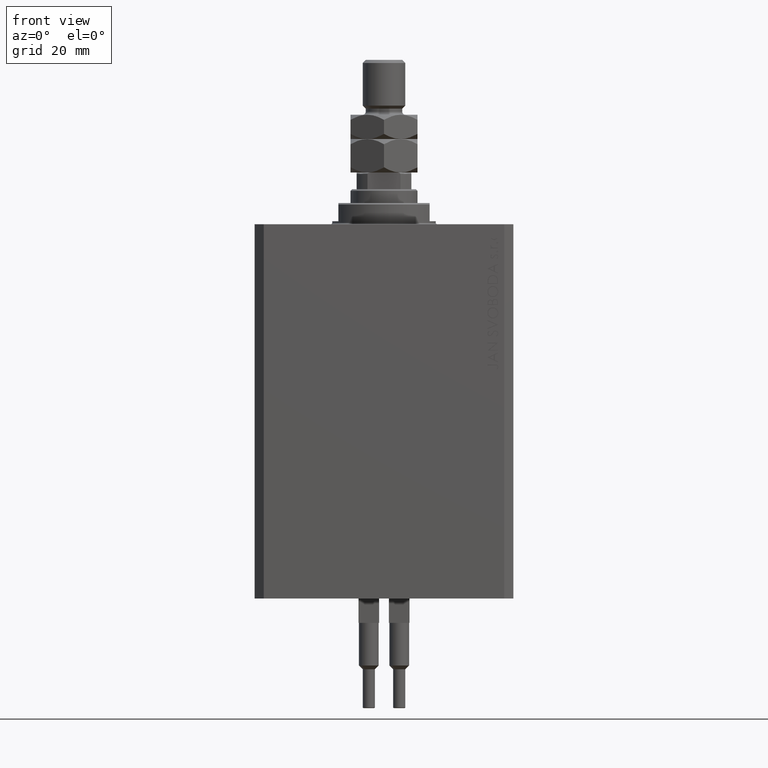
[diagram: clean part render]
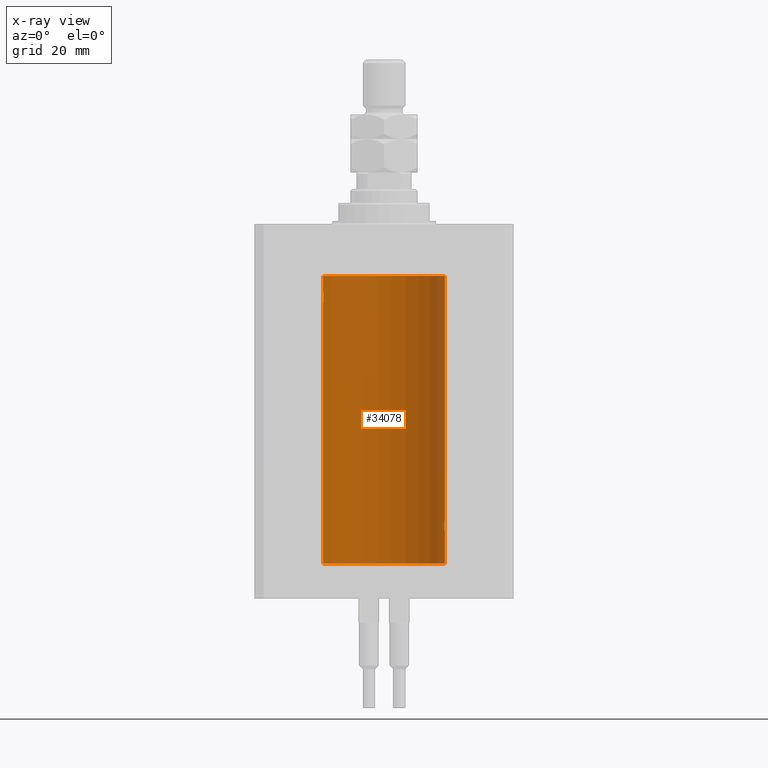
[diagram: x-ray — body ghosted, one internal face saturated and labeled with its STEP entity id]
A machine part, front view, then the same camera in x-ray: the body is ghosted and one INTERNAL B-rep face — a face not visible from any outside direction — is saturated and labeled: STEP entity #34078.
In plain terms, the highlighted cylindrical surface (partial cylindrical patch) has radius 20 mm, axis along (0, 0, 1).
Its self-contained STEP definition (entity closure, byte-faithful):
#108 = CARTESIAN_POINT ( 'NONE',  ( 19.89974874213236689, 2.000000000000336620, -99.26114132155828429 ) ) ;
#316 = DIRECTION ( 'NONE',  ( -0.000000000000000000, -0.000000000000000000, 1.000000000000000000 ) ) ;
#1860 = CARTESIAN_POINT ( 'NONE',  ( 19.90980722176544049, 1.897923463361389285, -98.35574535366806970 ) ) ;
#1894 = DIRECTION ( 'NONE',  ( -0.000000000000000000, -0.000000000000000000, 1.000000000000000000 ) ) ;
#2314 = CARTESIAN_POINT ( 'NONE',  ( -19.89975827978156175, 1.999905101582726719, -23.73819846102561115 ) ) ;
#2622 = CARTESIAN_POINT ( 'NONE',  ( 19.89974874213236689, 2.000000000000336620, -98.86948983741758923 ) ) ;
#2738 = CARTESIAN_POINT ( 'NONE',  ( 0.000000000000000000, 0.000000000000000000, -111.5999999999999943 ) ) ;
#2824 = CARTESIAN_POINT ( 'NONE',  ( -19.91909332229799290, 1.797847595792767317, -24.88596189455837759 ) ) ;
#3067 = CARTESIAN_POINT ( 'NONE',  ( -19.92373272380676497, 1.747830109444745927, -22.99354240926169624 ) ) ;
#3252 = CARTESIAN_POINT ( 'NONE',  ( 19.89974874213236333, 2.000000000000336620, -99.00000000000000000 ) ) ;
#3445 = DIRECTION ( 'NONE',  ( 1.000000000000000000, 0.000000000000000000, 0.000000000000000000 ) ) ;
#3634 = CARTESIAN_POINT ( 'NONE',  ( 19.99868904672146641, 0.2623009746877876802, -100.9870089850981429 ) ) ;
#3828 = LINE ( 'NONE', #49482, #33064 ) ;
#4697 = ORIENTED_EDGE ( 'NONE', *, *, #32538, .T. ) ;
#5478 = ORIENTED_EDGE ( 'NONE', *, *, #10104, .T. ) ;
#5626 = CARTESIAN_POINT ( 'NONE',  ( 19.90107458412648711, 1.986930174329755161, -98.73692013941791856 ) ) ;
#5884 = CARTESIAN_POINT ( 'NONE',  ( 19.97511131722831479, 1.003336743019912936, -97.26498565174388489 ) ) ;
#6098 = LINE ( 'NONE', #24418, #15561 ) ;
#6307 = LINE ( 'NONE', #13087, #13617 ) ;
#6592 = CARTESIAN_POINT ( 'NONE',  ( -19.98067755938510714, 0.8872481584516758168, -22.20278656943303375 ) ) ;
#6797 = B_SPLINE_CURVE_WITH_KNOTS ( 'NONE', 3,
 ( #36979, #2622, #5626, #14153, #1860, #32454, #21200, #47758, #13398, #43998, #24952, #5884, #36471, #10660, #18420, #33953, #41246, #30683 ),
 .UNSPECIFIED., .F., .F.,
 ( 4, 2, 2, 2, 2, 2, 2, 2, 4 ),
 ( 0.003129134698348759892, 0.003520095305221480463, 0.003911055912094201469, 0.004302016518966922040, 0.004692977125839642612, 0.005083937732712363183, 0.005474898339585083755, 0.005865858946457804327, 0.006256819553330524898 ),
 .UNSPECIFIED. ) ;
#6836 = CARTESIAN_POINT ( 'NONE',  ( -19.99999999999999645, 0.1305706983324449733, -25.99999999999998934 ) ) ;
#7613 = CIRCLE ( 'NONE', #31621, 20.00000000000000000 ) ;
#8341 = CARTESIAN_POINT ( 'NONE',  ( 20.00000000000000000, 0.000000000000000000, -111.5999999999999943 ) ) ;
#8435 = DIRECTION ( 'NONE',  ( 0.000000000000000000, 0.000000000000000000, 1.000000000000000000 ) ) ;
#9239 = VERTEX_POINT ( 'NONE', #8341 ) ;
#9688 = LINE ( 'NONE', #33491, #32085 ) ;
#9867 = CARTESIAN_POINT ( 'NONE',  ( -19.98998539619404013, 0.6443418861413118259, -25.89789687358865322 ) ) ;
#10104 = EDGE_CURVE ( 'NONE', #10268, #20200, #39236, .T. ) ;
#10268 = VERTEX_POINT ( 'NONE', #40673 ) ;
#10313 = EDGE_CURVE ( 'NONE', #32950, #20200, #6307, .T. ) ;
#10321 = ORIENTED_EDGE ( 'NONE', *, *, #24686, .F. ) ;
#10364 = CARTESIAN_POINT ( 'NONE',  ( -19.98996196681220638, 0.6450624715427617506, -22.10234886833925572 ) ) ;
#10660 = CARTESIAN_POINT ( 'NONE',  ( 19.98998987637478209, 0.6441982143731844745, -97.10205654639885609 ) ) ;
#10683 = CARTESIAN_POINT ( 'NONE',  ( 19.89974874213236333, 2.000000000000336620, -99.00000000000000000 ) ) ;
#11420 = CARTESIAN_POINT ( 'NONE',  ( 19.98066923111604964, 0.8874387315505228857, -100.7971214522023899 ) ) ;
#11657 = CARTESIAN_POINT ( 'NONE',  ( 19.92371056170336274, 1.748080295468898537, -100.0060386593725070 ) ) ;
#13087 = CARTESIAN_POINT ( 'NONE',  ( -20.00000000000000000, 2.449293598294706513E-15, -111.5999999999999943 ) ) ;
#13354 = CARTESIAN_POINT ( 'NONE',  ( -19.90978941500366872, 1.898109641280506521, -24.64371130639850804 ) ) ;
#13398 = CARTESIAN_POINT ( 'NONE',  ( 19.94332236886613074, 1.507531922383789524, -97.67909949904074551 ) ) ;
#13608 = CARTESIAN_POINT ( 'NONE',  ( -19.96304379627741454, 1.220099331833899736, -25.59007067689674386 ) ) ;
#13617 = VECTOR ( 'NONE', #39919, 1000.000000000000000 ) ;
#13685 = EDGE_CURVE ( 'NONE', #29321, #21883, #25466, .T. ) ;
#14153 = CARTESIAN_POINT ( 'NONE',  ( 19.90611763847108762, 1.935753518394741635, -98.48042243434849752 ) ) ;
#15561 = VECTOR ( 'NONE', #21170, 1000.000000000000000 ) ;
#16537 = B_SPLINE_CURVE_WITH_KNOTS ( 'NONE', 3,
 ( #48478, #29404, #36675, #24906, #10364, #6592, #33410, #36431, #44705, #37183, #3067, #25903, #2314, #21657, #21912, #36930, #13354, #2824, #18129, #40455, #41201, #29160, #13608, #40201, #48715, #9867, #48227, #32916, #6836, #17622 ),
 .UNSPECIFIED., .F., .F.,
 ( 4, 2, 2, 2, 2, 2, 2, 2, 2, 2, 2, 2, 2, 2, 4 ),
 ( 1.233811249882840126E-19, 0.0003910512220831129202, 0.0007821024441662257319, 0.001173153666249338381, 0.001564204888332450813, 0.002346307332498675461, 0.003128409776664900326, 0.003519460998748018179, 0.003910512220831135165, 0.004301563442914253452, 0.004692614664997370871, 0.005083665887080488291, 0.005474717109163606578, 0.005865768331246723997, 0.006256819553329842284 ),
 .UNSPECIFIED. ) ;
#17622 = CARTESIAN_POINT ( 'NONE',  ( -20.00000000000000000, 2.449293582768784389E-15, -25.99999999999999645 ) ) ;
#18046 = DIRECTION ( 'NONE',  ( -0.000000000000000000, -0.000000000000000000, 1.000000000000000000 ) ) ;
#18129 = CARTESIAN_POINT ( 'NONE',  ( -19.92471474456649716, 1.735228749583835439, -25.00297226784954674 ) ) ;
#18196 = CARTESIAN_POINT ( 'NONE',  ( 19.93682487288204541, 1.599118048130817149, -100.2291703518122148 ) ) ;
#18420 = CARTESIAN_POINT ( 'NONE',  ( 19.99366205580918887, 0.5195372307044503479, -97.06423906555805559 ) ) ;
#18446 = CARTESIAN_POINT ( 'NONE',  ( 19.90520750556430229, 1.947496194184494378, -99.52455416993456083 ) ) ;
#19177 = CARTESIAN_POINT ( 'NONE',  ( 20.00000000000000000, 0.1322642052205942886, -101.0000000000000426 ) ) ;
#20200 = VERTEX_POINT ( 'NONE', #44204 ) ;
#20316 = VERTEX_POINT ( 'NONE', #23112 ) ;
#20799 = ORIENTED_EDGE ( 'NONE', *, *, #27099, .T. ) ;
#21170 = DIRECTION ( 'NONE',  ( -0.000000000000000000, -0.000000000000000000, 1.000000000000000000 ) ) ;
#21200 = CARTESIAN_POINT ( 'NONE',  ( 19.92473605353366040, 1.734984354167257159, -97.99660905888588047 ) ) ;
#21657 = CARTESIAN_POINT ( 'NONE',  ( -19.89974399317116394, 2.000047251570890250, -24.12981181290706445 ) ) ;
#21883 = VERTEX_POINT ( 'NONE', #3252 ) ;
#21912 = CARTESIAN_POINT ( 'NONE',  ( -19.90106552791689154, 1.987020435121076734, -24.26241417820002155 ) ) ;
#22144 = CARTESIAN_POINT ( 'NONE',  ( -20.00000000000000000, 2.449293598294706513E-15, -111.5999999999999943 ) ) ;
#22179 = CARTESIAN_POINT ( 'NONE',  ( 0.000000000000000000, 0.000000000000000000, -17.00000000000000000 ) ) ;
#23112 = CARTESIAN_POINT ( 'NONE',  ( -20.00000000000000000, 2.449293582768784389E-15, -25.99999999999999645 ) ) ;
#24418 = CARTESIAN_POINT ( 'NONE',  ( 20.00000000000000000, 0.000000000000000000, -111.5999999999999943 ) ) ;
#24686 = EDGE_CURVE ( 'NONE', #30732, #20316, #9688, .T. ) ;
#24906 = CARTESIAN_POINT ( 'NONE',  ( -19.99370013622814568, 0.5179893069484621249, -22.06384771616670903 ) ) ;
#24952 = CARTESIAN_POINT ( 'NONE',  ( 19.96305842179988588, 1.219858681717333138, -97.40974712539565417 ) ) ;
#25070 = DIRECTION ( 'NONE',  ( 1.000000000000000000, 0.000000000000000000, 0.000000000000000000 ) ) ;
#25466 = B_SPLINE_CURVE_WITH_KNOTS ( 'NONE', 3,
 ( #34461, #19177, #3634, #42005, #30455, #11420, #45760, #49526, #45512, #18196, #11657, #18446, #108, #10683 ),
 .UNSPECIFIED., .F., .F.,
 ( 4, 2, 2, 2, 2, 2, 4 ),
 ( 1.911692756536875168E-18, 0.0003911418372936038769, 0.0007822836745872059107, 0.001173425511880807782, 0.001564567349174409870, 0.002346851023761584772, 0.003129134698348759892 ),
 .UNSPECIFIED. ) ;
#25611 = ORIENTED_EDGE ( 'NONE', *, *, #40784, .F. ) ;
#25903 = CARTESIAN_POINT ( 'NONE',  ( -19.90522393307484705, 1.947330458682957177, -23.47486091545001941 ) ) ;
#26397 = ORIENTED_EDGE ( 'NONE', *, *, #10313, .F. ) ;
#26414 = DIRECTION ( 'NONE',  ( 1.000000000000000000, 0.000000000000000000, 0.000000000000000000 ) ) ;
#27099 = EDGE_CURVE ( 'NONE', #32950, #20316, #16537, .T. ) ;
#28339 = EDGE_LOOP ( 'NONE', ( #10321, #25611, #37802, #39657, #40348, #4697, #5478, #26397, #20799 ) ) ;
#28562 = CARTESIAN_POINT ( 'NONE',  ( 20.00000000000000000, -1.553109350199128042E-23, -97.00000000000000000 ) ) ;
#29073 = CYLINDRICAL_SURFACE ( 'NONE', #48363, 20.00000000000000000 ) ;
#29160 = CARTESIAN_POINT ( 'NONE',  ( -19.95654117037011588, 1.321069663197671273, -25.50738641543989615 ) ) ;
#29321 = VERTEX_POINT ( 'NONE', #36789 ) ;
#29404 = CARTESIAN_POINT ( 'NONE',  ( -19.99999999999999645, 0.1322335637814733289, -21.99999999999999645 ) ) ;
#29871 = CARTESIAN_POINT ( 'NONE',  ( -20.00000000000000000, -1.269718202421245235E-16, -22.00000000000000000 ) ) ;
#30455 = CARTESIAN_POINT ( 'NONE',  ( 19.98995738555794688, 0.6452086089795042723, -100.8976034536016044 ) ) ;
#30683 = CARTESIAN_POINT ( 'NONE',  ( 20.00000000000000000, -1.553109350199128042E-23, -97.00000000000000000 ) ) ;
#30732 = VERTEX_POINT ( 'NONE', #22144 ) ;
#31621 = AXIS2_PLACEMENT_3D ( 'NONE', #42792, #8435, #3445 ) ;
#32085 = VECTOR ( 'NONE', #1894, 1000.000000000000000 ) ;
#32454 = CARTESIAN_POINT ( 'NONE',  ( 19.91911433329477177, 1.797615436563606561, -98.11357106075776358 ) ) ;
#32538 = EDGE_CURVE ( 'NONE', #34170, #10268, #3828, .T. ) ;
#32916 = CARTESIAN_POINT ( 'NONE',  ( -19.99867931558985745, 0.2631998640366461362, -25.98691292011447374 ) ) ;
#32950 = VERTEX_POINT ( 'NONE', #29871 ) ;
#33064 = VECTOR ( 'NONE', #316, 1000.000000000000000 ) ;
#33410 = CARTESIAN_POINT ( 'NONE',  ( -19.97517568592526160, 1.002099838626314909, -22.26423634872104884 ) ) ;
#33491 = CARTESIAN_POINT ( 'NONE',  ( -20.00000000000000000, 2.449293598294706513E-15, -111.5999999999999943 ) ) ;
#33953 = CARTESIAN_POINT ( 'NONE',  ( 19.99867993937906618, 0.2631387813862826053, -97.01308095003095389 ) ) ;
#34078 = ADVANCED_FACE ( 'NONE', ( #37099 ), #29073, .F. ) ;
#34170 = VERTEX_POINT ( 'NONE', #28562 ) ;
#34461 = CARTESIAN_POINT ( 'NONE',  ( 20.00000000000000000, 1.967327733996653312E-15, -101.0000000000000000 ) ) ;
#35743 = EDGE_CURVE ( 'NONE', #9239, #29321, #6098, .T. ) ;
#36431 = CARTESIAN_POINT ( 'NONE',  ( -19.96308513509966787, 1.219458756546270672, -22.40940266542446935 ) ) ;
#36471 = CARTESIAN_POINT ( 'NONE',  ( 19.98071536551674754, 0.8863972468204365240, -97.20236805399481739 ) ) ;
#36675 = CARTESIAN_POINT ( 'NONE',  ( -19.99868965376115071, 0.2622407139811102628, -22.01298505384673732 ) ) ;
#36789 = CARTESIAN_POINT ( 'NONE',  ( 20.00000000000000000, 1.967327733996653312E-15, -101.0000000000000000 ) ) ;
#36930 = CARTESIAN_POINT ( 'NONE',  ( -19.90610216711450420, 1.935912154109700190, -24.51899474186111050 ) ) ;
#36979 = CARTESIAN_POINT ( 'NONE',  ( 19.89974874213236333, 2.000000000000336620, -99.00000000000000000 ) ) ;
#37099 = FACE_OUTER_BOUND ( 'NONE', #28339, .T. ) ;
#37183 = CARTESIAN_POINT ( 'NONE',  ( -19.93684595445884611, 1.598854313793185655, -22.77049887769366521 ) ) ;
#37802 = ORIENTED_EDGE ( 'NONE', *, *, #35743, .T. ) ;
#39236 = CIRCLE ( 'NONE', #45658, 20.00000000000000000 ) ;
#39657 = ORIENTED_EDGE ( 'NONE', *, *, #13685, .T. ) ;
#39919 = DIRECTION ( 'NONE',  ( -0.000000000000000000, -0.000000000000000000, 1.000000000000000000 ) ) ;
#40201 = CARTESIAN_POINT ( 'NONE',  ( -19.97510079925438475, 1.003547732426807171, -25.73489454601984150 ) ) ;
#40348 = ORIENTED_EDGE ( 'NONE', *, *, #45233, .T. ) ;
#40455 = CARTESIAN_POINT ( 'NONE',  ( -19.93679350243183990, 1.590453176650918676, -25.21960275349743696 ) ) ;
#40673 = CARTESIAN_POINT ( 'NONE',  ( 20.00000000000000000, 0.000000000000000000, -17.00000000000000000 ) ) ;
#40784 = EDGE_CURVE ( 'NONE', #9239, #30732, #7613, .T. ) ;
#41201 = CARTESIAN_POINT ( 'NONE',  ( -19.94330239452387232, 1.507796451871729504, -25.32060165083834136 ) ) ;
#41246 = CARTESIAN_POINT ( 'NONE',  ( 20.00000000000000000, 0.1305404422160218736, -96.99999999999998579 ) ) ;
#42005 = CARTESIAN_POINT ( 'NONE',  ( 19.99369727434158506, 0.5181068333511539281, -100.9361228828299630 ) ) ;
#42792 = CARTESIAN_POINT ( 'NONE',  ( 0.000000000000000000, 0.000000000000000000, -111.5999999999999943 ) ) ;
#43998 = CARTESIAN_POINT ( 'NONE',  ( 19.95655800881796083, 1.320814917468111194, -97.49239309359698780 ) ) ;
#44204 = CARTESIAN_POINT ( 'NONE',  ( -20.00000000000000000, 2.449293598294706513E-15, -17.00000000000000000 ) ) ;
#44705 = CARTESIAN_POINT ( 'NONE',  ( -19.95645382900617903, 1.322305185229311064, -22.49384229619286657 ) ) ;
#45233 = EDGE_CURVE ( 'NONE', #21883, #34170, #6797, .T. ) ;
#45512 = CARTESIAN_POINT ( 'NONE',  ( 19.95643710845398999, 1.322557776536547047, -100.5059384114668717 ) ) ;
#45658 = AXIS2_PLACEMENT_3D ( 'NONE', #22179, #48998, #26414 ) ;
#45760 = CARTESIAN_POINT ( 'NONE',  ( 19.97516523393783316, 1.002309963754524524, -100.7356447155611079 ) ) ;
#47758 = CARTESIAN_POINT ( 'NONE',  ( 19.93681418096177183, 1.590194273034202688, -97.78006300821549246 ) ) ;
#48227 = CARTESIAN_POINT ( 'NONE',  ( -19.99365919015135518, 0.5196544277756711683, -25.93573148867292133 ) ) ;
#48363 = AXIS2_PLACEMENT_3D ( 'NONE', #2738, #18046, #25070 ) ;
#48478 = CARTESIAN_POINT ( 'NONE',  ( -20.00000000000000000, -1.269718202421245235E-16, -22.00000000000000000 ) ) ;
#48715 = CARTESIAN_POINT ( 'NONE',  ( -19.98070694681040038, 0.8865903856744316025, -25.79753901127162763 ) ) ;
#48998 = DIRECTION ( 'NONE',  ( 0.000000000000000000, 0.000000000000000000, 1.000000000000000000 ) ) ;
#49482 = CARTESIAN_POINT ( 'NONE',  ( 20.00000000000000000, 0.000000000000000000, -111.5999999999999943 ) ) ;
#49526 = CARTESIAN_POINT ( 'NONE',  ( 19.96307037068151757, 1.219701915132744841, -100.5904134935036751 ) ) ;